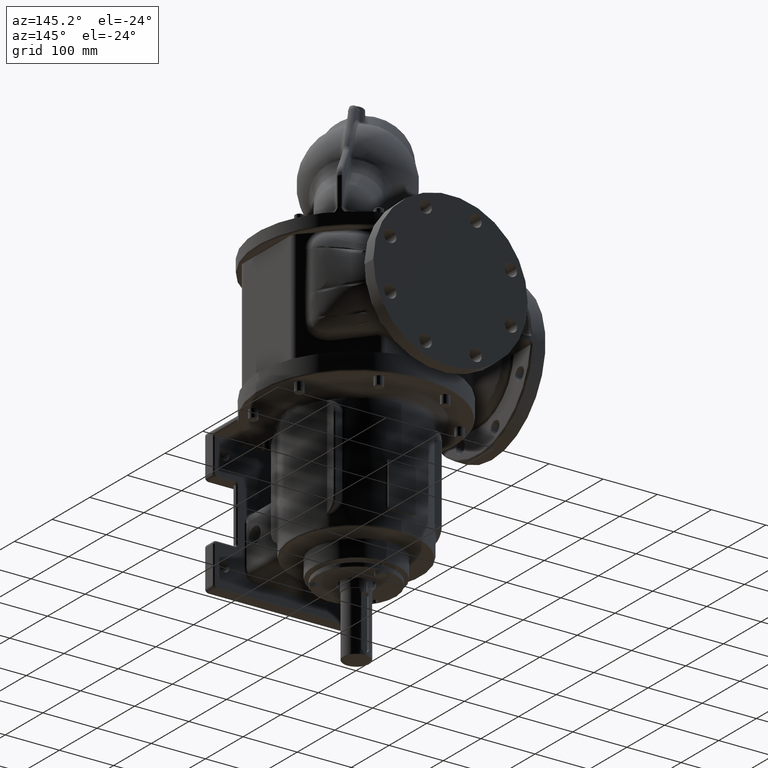
[diagram: clean part render]
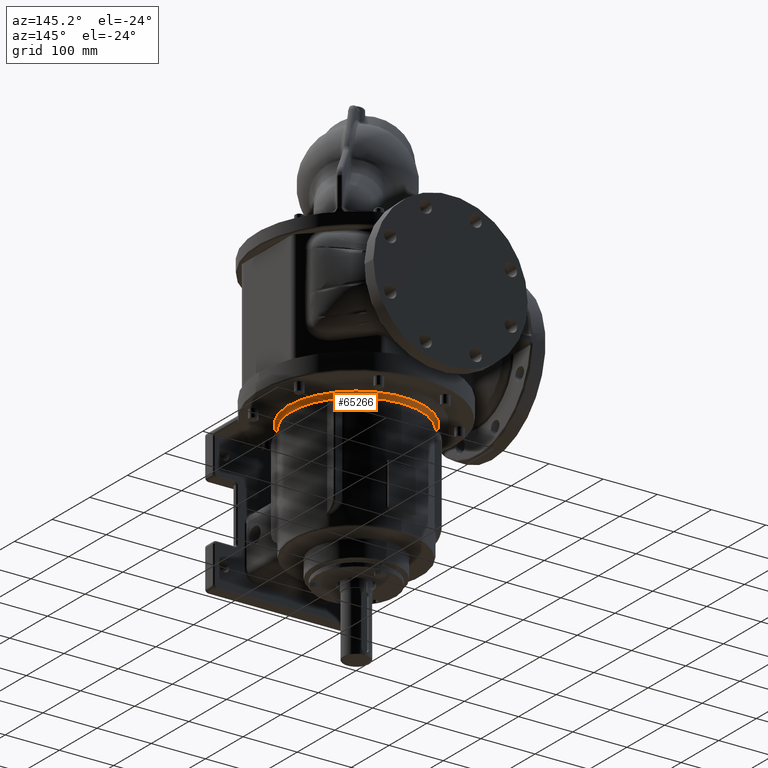
[diagram: same view with one face highlighted and labeled with its STEP entity id]
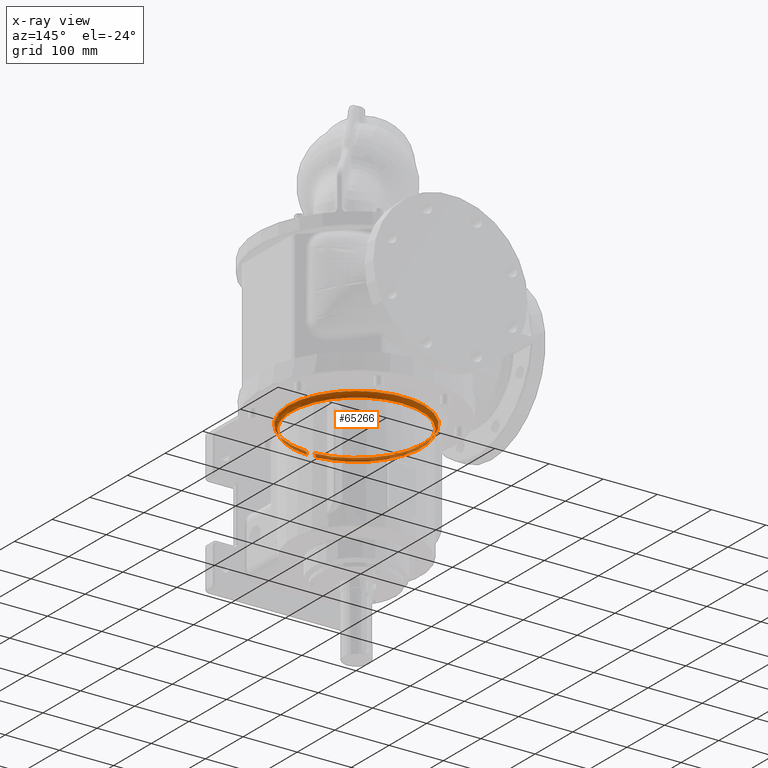
[diagram: x-ray of the same camera — body ghosted, the highlighted face saturated]
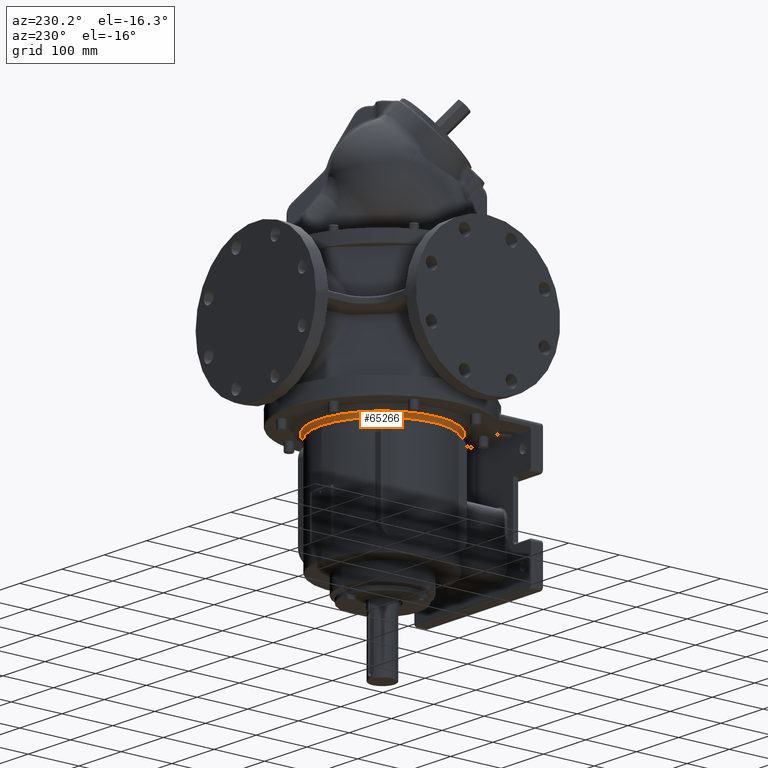
[diagram: same view with one face highlighted and labeled with its STEP entity id]
A machine part, auxiliary view. The second image highlights one B-rep face of the part: STEP entity #65266.
The next image is the same camera in x-ray: the body ghosted, the highlighted face saturated — about 28% of this face is hidden behind the body in this view.
A second angle (auxiliary view) of the same face is appended — the face is thin or edge-on in the first view.
In plain terms, the highlighted toroidal blend (fillet) surface has major radius 130 mm and minor (blend) radius 10 mm.
Its self-contained STEP definition (entity closure, byte-faithful):
#7142=CARTESIAN_POINT('',(7.905138339962E0,-1.237497847212E2,
-2.966025403897E1));
#7171=CARTESIAN_POINT('',(7.804878048862E0,-1.187459138298E2,
-3.832050807569E1));
#7172=CARTESIAN_POINT('',(7.804878047249E0,-1.187459138581E2,
-3.819588889694E1));
#7173=CARTESIAN_POINT('',(7.804974144647E0,-1.187505769993E2,
-3.794664927612E1));
#7174=CARTESIAN_POINT('',(7.805406310083E0,-1.187715515571E2,
-3.757331164305E1));
#7175=CARTESIAN_POINT('',(7.806125704940E0,-1.188064778220E2,
-3.720100824532E1));
#7176=CARTESIAN_POINT('',(7.807130975604E0,-1.188553061686E2,
-3.683027236160E1));
#7177=CARTESIAN_POINT('',(7.808420267389E0,-1.189179699964E2,
-3.646161107183E1));
#7178=CARTESIAN_POINT('',(7.809991182568E0,-1.189943819244E2,
-3.609554345889E1));
#7179=CARTESIAN_POINT('',(7.811840818256E0,-1.190844364563E2,
-3.573257796155E1));
#7180=CARTESIAN_POINT('',(7.813965758346E0,-1.191880087199E2,
-3.537322182887E1));
#7181=CARTESIAN_POINT('',(7.816362091564E0,-1.193049552912E2,
-3.501797625866E1));
#7182=CARTESIAN_POINT('',(7.819025419473E0,-1.194351140829E2,
-3.466733730117E1));
#7183=CARTESIAN_POINT('',(7.821950870715E0,-1.195783046685E2,
-3.432179460794E1));
#7184=CARTESIAN_POINT('',(7.825133114593E0,-1.197343284661E2,
-3.398183095258E1));
#7185=CARTESIAN_POINT('',(7.828566376483E0,-1.199029690035E2,
-3.364792151348E1));
#7186=CARTESIAN_POINT('',(7.832244454624E0,-1.200839922106E2,
-3.332053317775E1));
#7187=CARTESIAN_POINT('',(7.836160744991E0,-1.202771470857E2,
-3.300012334008E1));
#7188=CARTESIAN_POINT('',(7.840308251340E0,-1.204821656113E2,
-3.268714011921E1));
#7189=CARTESIAN_POINT('',(7.844679598522E0,-1.206987628048E2,
-3.238202202349E1));
#7190=CARTESIAN_POINT('',(7.849267060918E0,-1.209266375058E2,
-3.208519662492E1));
#7191=CARTESIAN_POINT('',(7.854062580797E0,-1.211654726468E2,
-3.179708015615E1));
#7192=CARTESIAN_POINT('',(7.859057790814E0,-1.214149357539E2,
-3.151807681562E1));
#7193=CARTESIAN_POINT('',(7.864244034077E0,-1.216746792300E2,
-3.124857834463E1));
#7194=CARTESIAN_POINT('',(7.869612390946E0,-1.219443412708E2,
-3.098896305862E1));
#7195=CARTESIAN_POINT('',(7.875153689429E0,-1.222235450992E2,
-3.073959636805E1));
#7196=CARTESIAN_POINT('',(7.880858557768E0,-1.225119028044E2,
-3.050082754297E1));
#7197=CARTESIAN_POINT('',(7.886717382646E0,-1.228090077085E2,
-3.027299553799E1));
#7198=CARTESIAN_POINT('',(7.892720438242E0,-1.231144527063E2,
-3.005641526664E1));
#7199=CARTESIAN_POINT('',(7.898857859639E0,-1.234277992889E2,
-2.985139982704E1));
#7200=CARTESIAN_POINT('',(7.903032056922E0,-1.236416762904E2,
-2.972262246797E1));
#7201=CARTESIAN_POINT('',(7.905138339962E0,-1.237497847212E2,
-2.966025403897E1));
#7203=CARTESIAN_POINT('',(0.E0,1.E0,-2.966025403784E1));
#7204=DIRECTION('',(0.E0,0.E0,1.E0));
#7205=DIRECTION('',(6.324110671937E-2,-9.979982777645E-1,0.E0));
#7206=AXIS2_PLACEMENT_3D('',#7203,#7204,#7205);
#7208=CARTESIAN_POINT('',(-7.905138339962E0,-1.237497847212E2,
-2.966025403897E1));
#7209=CARTESIAN_POINT('',(-7.903032056921E0,-1.236416762902E2,
-2.972262246805E1));
#7210=CARTESIAN_POINT('',(-7.898857859631E0,-1.234277992885E2,
-2.985139982725E1));
#7211=CARTESIAN_POINT('',(-7.892720438237E0,-1.231144527060E2,
-3.005641526682E1));
#7212=CARTESIAN_POINT('',(-7.886717382641E0,-1.228090077083E2,
-3.027299553815E1));
#7213=CARTESIAN_POINT('',(-7.880858557764E0,-1.225119028041E2,
-3.050082754315E1));
#7214=CARTESIAN_POINT('',(-7.875153689425E0,-1.222235450990E2,
-3.073959636822E1));
#7215=CARTESIAN_POINT('',(-7.869612390942E0,-1.219443412707E2,
-3.098896305880E1));
#7216=CARTESIAN_POINT('',(-7.864244034074E0,-1.216746792298E2,
-3.124857834480E1));
#7217=CARTESIAN_POINT('',(-7.859057790811E0,-1.214149357537E2,
-3.151807681579E1));
#7218=CARTESIAN_POINT('',(-7.854062580795E0,-1.211654726466E2,
-3.179708015632E1));
#7219=CARTESIAN_POINT('',(-7.849267060915E0,-1.209266375057E2,
-3.208519662508E1));
#7220=CARTESIAN_POINT('',(-7.844679598520E0,-1.206987628047E2,
-3.238202202364E1));
#7221=CARTESIAN_POINT('',(-7.840308251338E0,-1.204821656112E2,
-3.268714011935E1));
#7222=CARTESIAN_POINT('',(-7.836160744989E0,-1.202771470856E2,
-3.300012334022E1));
#7223=CARTESIAN_POINT('',(-7.832244454622E0,-1.200839922105E2,
-3.332053317788E1));
#7224=CARTESIAN_POINT('',(-7.828566376482E0,-1.199029690034E2,
-3.364792151361E1));
#7225=CARTESIAN_POINT('',(-7.825133114592E0,-1.197343284660E2,
-3.398183095269E1));
#7226=CARTESIAN_POINT('',(-7.821950870714E0,-1.195783046685E2,
-3.432179460805E1));
#7227=CARTESIAN_POINT('',(-7.819025419473E0,-1.194351140829E2,
-3.466733730127E1));
#7228=CARTESIAN_POINT('',(-7.816362091563E0,-1.193049552912E2,
-3.501797625875E1));
#7229=CARTESIAN_POINT('',(-7.813965758345E0,-1.191880087199E2,
-3.537322182895E1));
#7230=CARTESIAN_POINT('',(-7.811840818256E0,-1.190844364562E2,
-3.573257796161E1));
#7231=CARTESIAN_POINT('',(-7.809991182567E0,-1.189943819244E2,
-3.609554345894E1));
#7232=CARTESIAN_POINT('',(-7.808420267389E0,-1.189179699963E2,
-3.646161107187E1));
#7233=CARTESIAN_POINT('',(-7.807130975604E0,-1.188553061686E2,
-3.683027236162E1));
#7234=CARTESIAN_POINT('',(-7.806125704940E0,-1.188064778220E2,
-3.720100824534E1));
#7235=CARTESIAN_POINT('',(-7.805406310083E0,-1.187715515571E2,
-3.757331164304E1));
#7236=CARTESIAN_POINT('',(-7.804974144647E0,-1.187505769993E2,
-3.794664927610E1));
#7237=CARTESIAN_POINT('',(-7.804878047249E0,-1.187459138581E2,
-3.819588889694E1));
#7238=CARTESIAN_POINT('',(-7.804878048862E0,-1.187459138298E2,
-3.832050807569E1));
#8606=CARTESIAN_POINT('',(0.E0,1.E0,-3.832050807569E1));
#8607=DIRECTION('',(0.E0,0.E0,-1.E0));
#8608=DIRECTION('',(0.E0,1.E0,0.E0));
#8609=AXIS2_PLACEMENT_3D('',#8606,#8607,#8608);
#8984=CARTESIAN_POINT('',(0.E0,1.E0,-3.832050807569E1));
#8985=DIRECTION('',(0.E0,0.E0,1.E0));
#8986=DIRECTION('',(0.E0,1.E0,0.E0));
#8987=AXIS2_PLACEMENT_3D('',#8984,#8985,#8986);
#41467=VERTEX_POINT('',#7142);
#41470=VERTEX_POINT('',#7171);
#41472=VERTEX_POINT('',#7208);
#41473=VERTEX_POINT('',#7238);
#41723=CARTESIAN_POINT('',(0.E0,1.21E2,-3.832050807569E1));
#41724=VERTEX_POINT('',#41723);
#65251=CARTESIAN_POINT('',(0.E0,1.E0,-3.832050807569E1));
#65252=DIRECTION('',(0.E0,0.E0,-1.E0));
#65253=DIRECTION('',(0.E0,1.E0,0.E0));
#65254=AXIS2_PLACEMENT_3D('',#65251,#65252,#65253);
#65255=TOROIDAL_SURFACE('',#65254,1.3E2,1.E1);
#65256=ORIENTED_EDGE('',*,*,#65241,.T.);
#65257=ORIENTED_EDGE('',*,*,#65061,.T.);
#65259=ORIENTED_EDGE('',*,*,#65258,.T.);
#65261=ORIENTED_EDGE('',*,*,#65260,.F.);
#65263=ORIENTED_EDGE('',*,*,#65262,.T.);
#65264=EDGE_LOOP('',(#65256,#65257,#65259,#65261,#65263));
#65265=FACE_OUTER_BOUND('',#65264,.F.);
#65266=ADVANCED_FACE('',(#65265),#65255,.F.);
#7202=B_SPLINE_CURVE_WITH_KNOTS('',3,(#7171,#7172,#7173,#7174,#7175,#7176,#7177,
#7178,#7179,#7180,#7181,#7182,#7183,#7184,#7185,#7186,#7187,#7188,#7189,#7190,
#7191,#7192,#7193,#7194,#7195,#7196,#7197,#7198,#7199,#7200,#7201),
.UNSPECIFIED.,.F.,.F.,(4,1,1,1,1,1,1,1,1,1,1,1,1,1,1,1,1,1,1,1,1,1,1,1,1,1,1,1,
4),(0.E0,3.571428571429E-2,7.142857142857E-2,1.071428571429E-1,
1.428571428571E-1,1.785714285714E-1,2.142857142857E-1,2.5E-1,2.857142857143E-1,
3.214285714286E-1,3.571428571429E-1,3.928571428571E-1,4.285714285714E-1,
4.642857142857E-1,5.E-1,5.357142857143E-1,5.714285714286E-1,6.071428571429E-1,
6.428571428571E-1,6.785714285714E-1,7.142857142857E-1,7.5E-1,7.857142857143E-1,
8.214285714286E-1,8.571428571429E-1,8.928571428571E-1,9.285714285714E-1,
9.642857142857E-1,1.E0),.UNSPECIFIED.);
#7207=CIRCLE('',#7206,1.25E2);
#7239=B_SPLINE_CURVE_WITH_KNOTS('',3,(#7208,#7209,#7210,#7211,#7212,#7213,#7214,
#7215,#7216,#7217,#7218,#7219,#7220,#7221,#7222,#7223,#7224,#7225,#7226,#7227,
#7228,#7229,#7230,#7231,#7232,#7233,#7234,#7235,#7236,#7237,#7238),
.UNSPECIFIED.,.F.,.F.,(4,1,1,1,1,1,1,1,1,1,1,1,1,1,1,1,1,1,1,1,1,1,1,1,1,1,1,1,
4),(0.E0,3.571428571429E-2,7.142857142857E-2,1.071428571429E-1,
1.428571428571E-1,1.785714285714E-1,2.142857142857E-1,2.5E-1,2.857142857143E-1,
3.214285714286E-1,3.571428571429E-1,3.928571428571E-1,4.285714285714E-1,
4.642857142857E-1,5.E-1,5.357142857143E-1,5.714285714286E-1,6.071428571429E-1,
6.428571428571E-1,6.785714285714E-1,7.142857142857E-1,7.5E-1,7.857142857143E-1,
8.214285714286E-1,8.571428571429E-1,8.928571428571E-1,9.285714285714E-1,
9.642857142857E-1,1.E0),.UNSPECIFIED.);
#8610=CIRCLE('',#8609,1.2E2);
#8988=CIRCLE('',#8987,1.2E2);
#65061=EDGE_CURVE('',#41467,#41472,#7207,.T.);
#65241=EDGE_CURVE('',#41470,#41467,#7202,.T.);
#65258=EDGE_CURVE('',#41472,#41473,#7239,.T.);
#65260=EDGE_CURVE('',#41724,#41473,#8988,.T.);
#65262=EDGE_CURVE('',#41724,#41470,#8610,.T.);